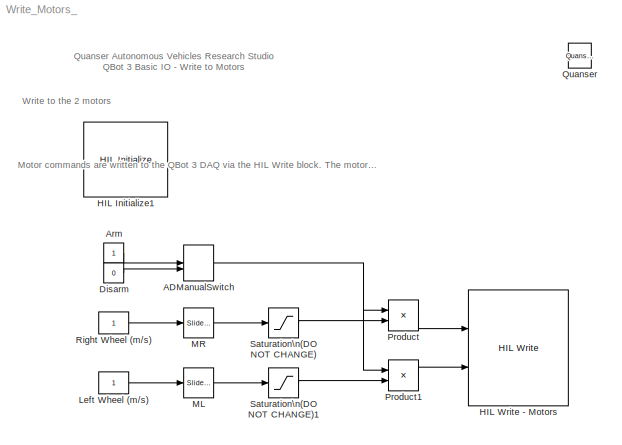
MODEL Write_Motors_
KIND model
CONFIG InitFcn = set_param('Write_Motors/ADManualSwitch', 'sw', '0');
BLOCK [ManualSwitch] ADManualSwitch
  SID = 8291
BLOCK [Constant] Arm
  SID = 8289
BLOCK [Constant] Disarm
  SID = 8290
  Value = 0
BLOCK [Reference] HIL Initialize1  REF=quarc_library/Data Acquisition/Generic/Configuration/HIL Initialize
  AttributesFormatString = %<object_name> (%<board_type>-%<board_number>)
  MultiThreadCoSim = auto
  Ports = []
  Priority = -99
  SID = 8330
  SourceBlock = quarc_library/Data Acquisition/Generic/Configuration/HIL Initialize
  SourceProductName = QUARC Targets
  SourceType = HIL Initialize
  UserData = DataTag1
  UserDataPersistent = on
  active = off
  analog_input_channels = [0:5]
  analog_input_configurations = []
  analog_input_maximums = [16.5 3.3 3.3 3.3 3.3 3.3]
  analog_input_minimums = [0 0 0 0 0 0]
  analog_output_channels = []
  analog_output_maximums = []
  analog_output_minimums = []
  board_number = 0
  board_options = pwm0_en=1;pwm0_pin=12;pwm1_en=1;pwm1_pin=13;
  board_type = qbot3
  clock_modes = []
  digital_input_channels = [28:58]
  digital_output_channels = [28:31]
  digital_output_configuration = []
  encoder_channels = [0:1]
  encoder_filter_frequency = []
  exclusive = off
  final_analog_outputs = []
  final_digital_outputs = [0]
  final_other_outputs = [0 0 0 7]
  final_pwm_outputs = [0]
  hardware_clocks = []
  initial_analog_outputs = []
  initial_clock_frequencies = []
  initial_digital_outputs = [0]
  initial_encoder_counts = [0]
  initial_other_outputs = [0 0 0 7]
  initial_pwm_outputs = [0]
  object_name = HIL-1
  other_output_channels = [2000:2001 14000 16000]
  pwm_alignment = [0]
  pwm_channels = [0:1]
  pwm_configuration = [0]
  pwm_frequency = 100e6 / 4095
  pwm_leading_deadband = []
  pwm_modes = 0
  pwm_polarity = [1]
  pwm_trailing_deadband = []
  quadrature = [4]
  set_analog_input_params_at_start = off
  set_analog_input_params_at_switch_in = off
  set_analog_output_params_at_start = off
  set_analog_output_params_at_switch_in = off
  set_analog_outputs_at_start = off
  set_analog_outputs_at_switch_in = off
  set_analog_outputs_at_switch_out = off
  set_analog_outputs_at_terminate = off
  set_analog_outputs_on_watchdog = off
  set_clock_frequencies_at_start = off
  set_clock_frequencies_at_switch_in = off
  set_clock_params_at_start = off
  set_clock_params_at_switch_in = off
  set_digital_output_params_at_start = off
  set_digital_output_params_at_switch_in = off
  set_digital_outputs_at_start = on
  set_digital_outputs_at_switch_in = off
  set_digital_outputs_at_switch_out = off
  set_digital_outputs_at_terminate = on
  set_digital_outputs_on_watchdog = off
  set_encoder_counts_at_start = on
  set_encoder_counts_at_switch_in = off
  set_encoder_params_at_start = on
  set_encoder_params_at_switch_in = off
  set_other_outputs_at_start = on
  set_other_outputs_at_switch_in = off
  set_other_outputs_at_switch_out = off
  set_other_outputs_at_terminate = on
  set_other_outputs_on_watchdog = off
  set_pwm_outputs_at_start = on
  set_pwm_outputs_at_switch_in = off
  set_pwm_outputs_at_switch_out = off
  set_pwm_outputs_at_terminate = on
  set_pwm_outputs_on_watchdog = off
  set_pwm_params_at_start = on
  set_pwm_params_at_switch_in = off
  watchdog_analog_outputs = []
  watchdog_digital_outputs = []
  watchdog_other_outputs = []
  watchdog_pwm_outputs = []
BLOCK [Reference] HIL Write - Motors  REF=quarc_library/Data Acquisition/Generic/Immediate I//O/HIL Write
  AttributesFormatString = (%<object_name>)
  MultiThreadCoSim = auto
  Ports = [2]
  SID = 8315
  SourceBlock = quarc_library/Data Acquisition/Generic/Immediate I//O/HIL Write
  SourceProductName = QUARC Targets
  SourceType = HIL Write
  UserData = DataTag2
  UserDataPersistent = on
  active = on
  analog_channels = []
  digital_channels = []
  object_name = HIL-1
  other_channels = [2000:2001]
  pwm_channels = []
  sample_time = -1
  vector_input = off
BLOCK [Constant] Left Wheel (m//s)
  SID = 8320
BLOCK [Reference] ML  REF=simulink/Math\nOperations/Slider\nGain
  Ports = [1, 1]
  RTWMemSecDataConstants = Inherit from model
  RTWMemSecDataInternal = Inherit from model
  RTWMemSecDataParameters = Inherit from model
  RTWMemSecFuncExecute = Inherit from model
  RTWMemSecFuncInitTerm = Inherit from model
  SID = 8327
  SourceBlock = simulink/Math\nOperations/Slider\nGain
  SourceProductBaseCode = SL
  SourceType = Slider Gain
  gain = 0
  high = 0.7
  low = -0.7
BLOCK [Reference] MR  REF=simulink/Math\nOperations/Slider\nGain
  Ports = [1, 1]
  RTWMemSecDataConstants = Inherit from model
  RTWMemSecDataInternal = Inherit from model
  RTWMemSecDataParameters = Inherit from model
  RTWMemSecFuncExecute = Inherit from model
  RTWMemSecFuncInitTerm = Inherit from model
  SID = 8326
  SourceBlock = simulink/Math\nOperations/Slider\nGain
  SourceProductBaseCode = SL
  SourceType = Slider Gain
  gain = 0
  high = 0.7
  low = -0.7
BLOCK [Product] Product
  Ports = [2, 1]
  SID = 8292
BLOCK [Product] Product1
  Ports = [2, 1]
  SID = 8329
BLOCK [Reference] Quanser  REF=quarc_library/Logos/Quanser
  Ports = []
  RTWMemSecDataConstants = Inherit from model
  RTWMemSecDataInternal = Inherit from model
  RTWMemSecDataParameters = Inherit from model
  RTWMemSecFuncExecute = Inherit from model
  RTWMemSecFuncInitTerm = Inherit from model
  SID = 8271
  SourceBlock = quarc_library/Logos/Quanser
  SourceProductName = QUARC Targets
  SourceType = Powered by Quanser
BLOCK [Constant] Right Wheel (m//s)
  SID = 8325
BLOCK [Saturate] Saturation\n(DO NOT CHANGE)
  LowerLimit = -0.7
  SID = 8280
  UpperLimit = 0.7
BLOCK [Saturate] Saturation\n(DO NOT CHANGE)1
  LowerLimit = -0.7
  SID = 8328
  UpperLimit = 0.7
ANNOTATION (root): \n \n Motor commands are written to the QBot 3 DAQ via the HIL Write block. The motor commands are in m/s.
ANNOTATION (root): \n \n Quanser Autonomous Vehicles Research Studio QBot 3 Basic IO - Write to Motors
ANNOTATION (root): Write to the 2 motors
NET ADManualSwitch:1 -> Product1:1, Product:1
LINE Arm:1 -> ADManualSwitch:1
LINE Disarm:1 -> ADManualSwitch:2
LINE Left Wheel (m//s):1 -> ML:1
LINE ML:1 -> Saturation\n(DO NOT CHANGE)1:1
LINE MR:1 -> Saturation\n(DO NOT CHANGE):1
LINE Product1:1 -> HIL Write - Motors:2
LINE Product:1 -> HIL Write - Motors:1
LINE Right Wheel (m//s):1 -> MR:1
LINE Saturation\n(DO NOT CHANGE)1:1 -> Product1:2
LINE Saturation\n(DO NOT CHANGE):1 -> Product:2
note: NET lines group one-source signal fan-out (src -> all destinations, sorted); 1:1 wires keep LINE
